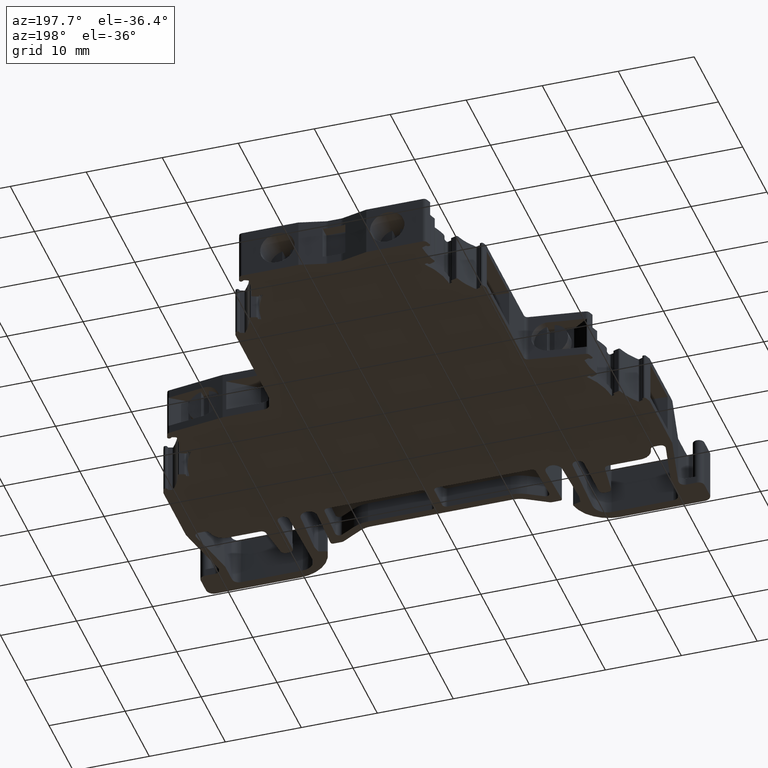
[diagram: clean part render]
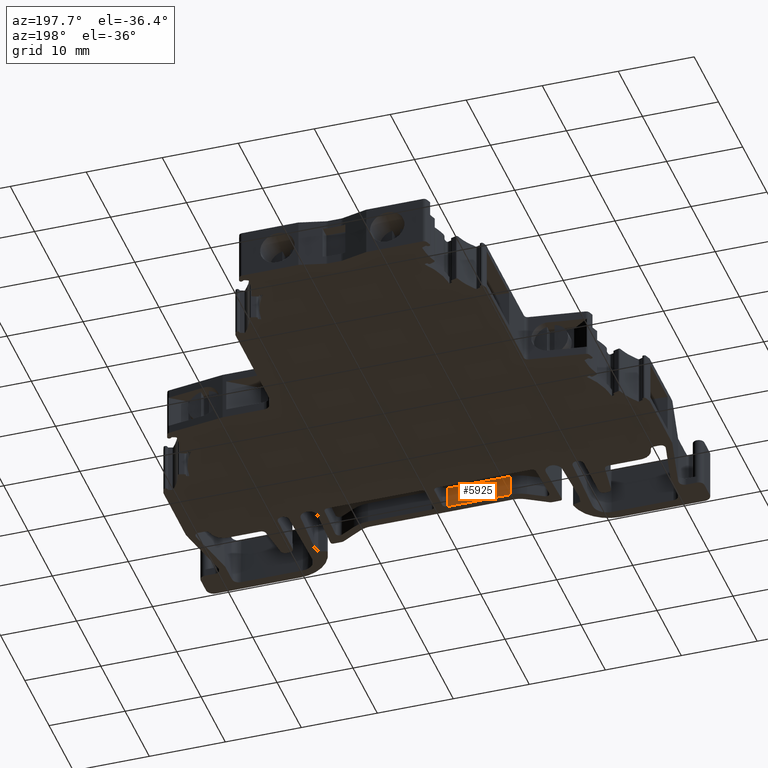
[diagram: same view with one face highlighted and labeled with its STEP entity id]
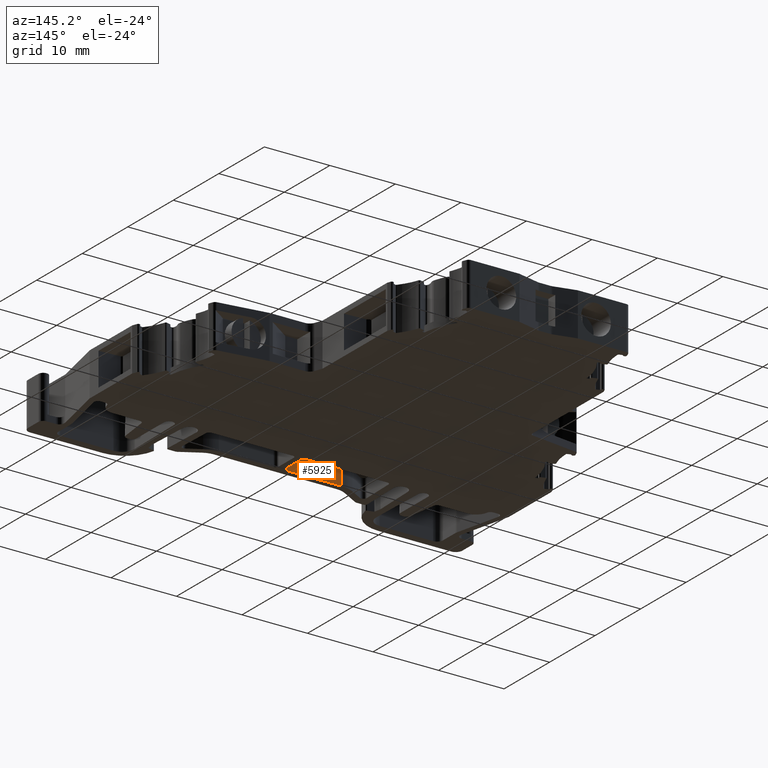
[diagram: same view with one face highlighted and labeled with its STEP entity id]
A machine part, auxiliary view. The second image highlights one B-rep face of the part: STEP entity #5925.
A second angle (auxiliary view) of the same face is appended — the face is thin or edge-on in the first view.
In plain terms, the highlighted planar face has unit normal (0, -0.9998, 0.0175).
Its self-contained STEP definition (entity closure, byte-faithful):
#1522 = VERTEX_POINT ( 'NONE', #8165 ) ;
#1525 = VERTEX_POINT ( 'NONE', #8166 ) ;
#1568 = VERTEX_POINT ( 'NONE', #13356 ) ;
#1743 = VERTEX_POINT ( 'NONE', #12970 ) ;
#2988 = PLANE ( 'NONE',  #11278 ) ;
#2990 = CARTESIAN_POINT ( 'NONE',  ( -0.5638294082347058400, -22.85152363939113900, 0.03308744993632267000 ) ) ;
#2992 = FACE_OUTER_BOUND ( 'NONE', #5008, .T. ) ;
#3016 = DIRECTION ( 'NONE',  ( 0.0000000000000000000, -0.9998476951563912700, 0.01745240643728355300 ) ) ;
#3021 = DIRECTION ( 'NONE',  ( 0.0000000000000000000, -0.01745240643728355000, -0.9998476951563911600 ) ) ;
#4042 = EDGE_CURVE ( 'NONE', #1525, #1522, #13045, .T. ) ;
#4119 = EDGE_CURVE ( 'NONE', #1522, #1568, #13138, .T. ) ;
#4548 = EDGE_CURVE ( 'NONE', #1568, #1743, #8998, .T. ) ;
#4622 = EDGE_CURVE ( 'NONE', #1525, #1743, #8717, .T. ) ;
#5008 = EDGE_LOOP ( 'NONE', ( #12048, #11926, #12002, #12639 ) ) ;
#5925 = ADVANCED_FACE ( 'NONE', ( #2992 ), #2988, .F. ) ;
#8165 = CARTESIAN_POINT ( 'NONE',  ( -1.106081788264712700, -22.80919510694021900, 2.458087449936324100 ) ) ;
#8166 = CARTESIAN_POINT ( 'NONE',  ( -1.057207606466745700, -22.85806928873922300, -0.3419125500636773200 ) ) ;
#8717 = LINE ( 'NONE', #8718, #9738 ) ;
#8718 = CARTESIAN_POINT ( 'NONE',  ( -0.5638294082347058400, -22.85806928873922300, -0.3419125500636773200 ) ) ;
#8722 = DIRECTION ( 'NONE',  ( -1.000000000000000000, 0.0000000000000000000, 0.0000000000000000000 ) ) ;
#8996 = CARTESIAN_POINT ( 'NONE',  ( -9.389836664369637400, -22.80919510694021200, 2.458087449936323700 ) ) ;
#8998 = LINE ( 'NONE', #8996, #9664 ) ;
#9012 = DIRECTION ( 'NONE',  ( 0.004676307079624574500, -0.01745221561295638400, -0.9998367628379624100 ) ) ;
#9139 = VECTOR ( 'NONE', #13035, 1000.000000000000200 ) ;
#9271 = VECTOR ( 'NONE', #13139, 1000.000000000000000 ) ;
#9664 = VECTOR ( 'NONE', #9012, 1000.000000000000100 ) ;
#9738 = VECTOR ( 'NONE', #8722, 1000.000000000000000 ) ;
#11278 = AXIS2_PLACEMENT_3D ( 'NONE', #2990, #3016, #3021 ) ;
#11926 = ORIENTED_EDGE ( 'NONE', *, *, #4622, .T. ) ;
#12002 = ORIENTED_EDGE ( 'NONE', *, *, #4548, .F. ) ;
#12048 = ORIENTED_EDGE ( 'NONE', *, *, #4042, .F. ) ;
#12639 = ORIENTED_EDGE ( 'NONE', *, *, #4119, .F. ) ;
#12970 = CARTESIAN_POINT ( 'NONE',  ( -9.376740866825862500, -22.85806928873922300, -0.3419125500636775400 ) ) ;
#13013 = CARTESIAN_POINT ( 'NONE',  ( -1.064189632437886600, -22.85108726276793300, 0.05808744993632154700 ) ) ;
#13035 = DIRECTION ( 'NONE',  ( -0.01744974916031743000, 0.01744974916068350900, 0.9996954598818937900 ) ) ;
#13045 = LINE ( 'NONE', #13013, #9139 ) ;
#13134 = CARTESIAN_POINT ( 'NONE',  ( -0.5638294082347058400, -22.80919510694021200, 2.458087449936323700 ) ) ;
#13138 = LINE ( 'NONE', #13134, #9271 ) ;
#13139 = DIRECTION ( 'NONE',  ( -1.000000000000000000, -0.0000000000000000000, -0.0000000000000000000 ) ) ;
#13356 = CARTESIAN_POINT ( 'NONE',  ( -9.389836664369637400, -22.80919510694008800, 2.458087449936322800 ) ) ;